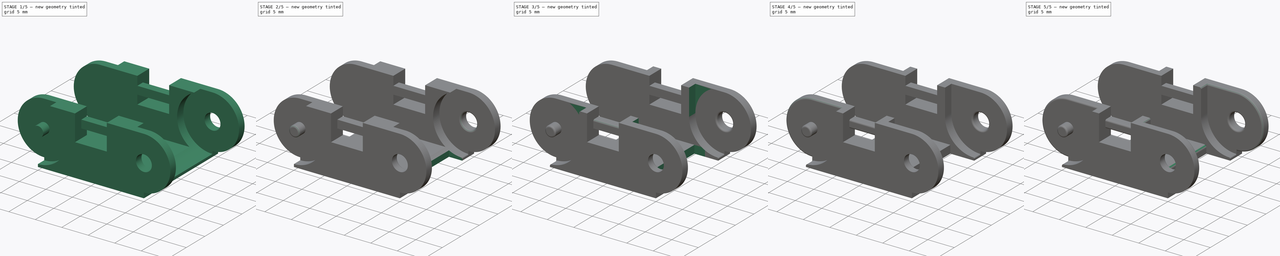
[diagram: build sequence overview — one tinted view per stage of 5, left to right]
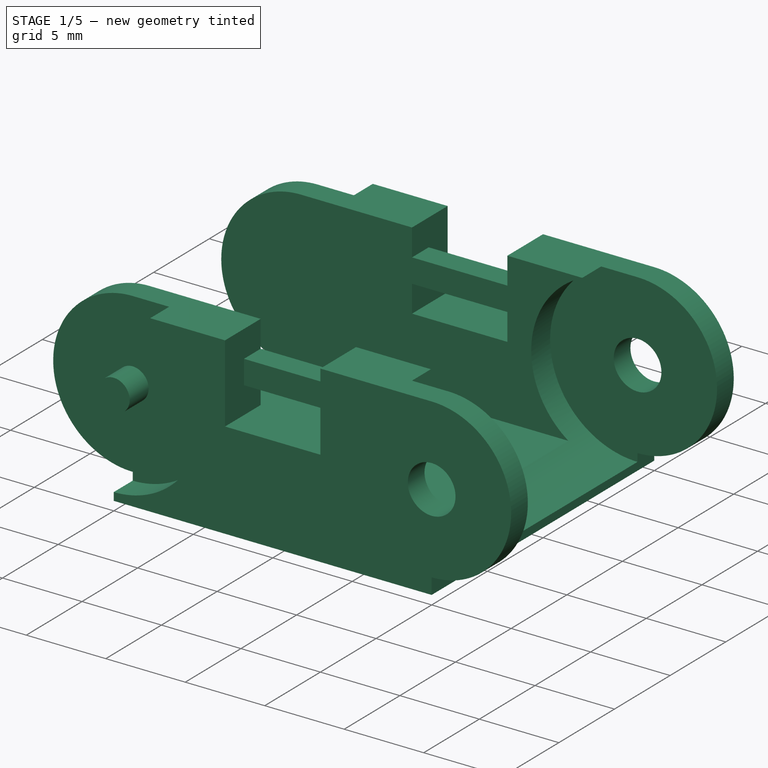
[diagram: stage 1 of 5 — iso view after this stage's code; geometry added in this stage tinted green]
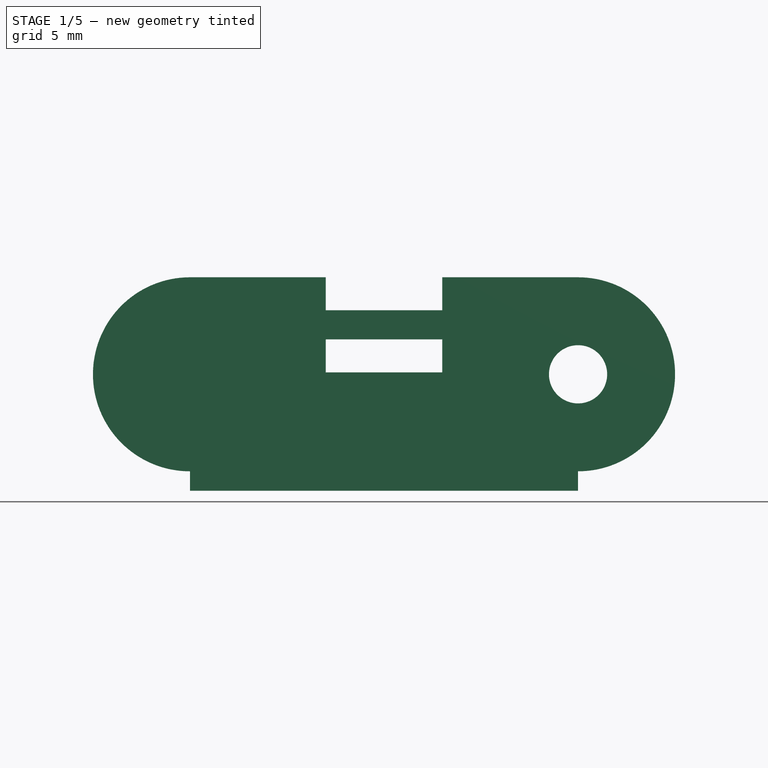
[diagram: stage 1 of 5 — front view after this stage's code; geometry added in this stage tinted green]
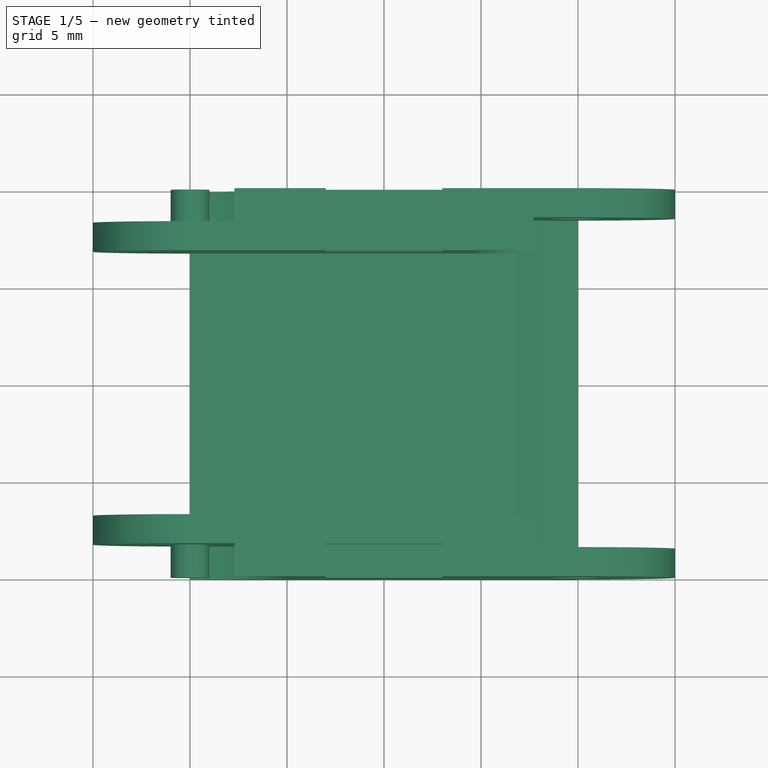
[diagram: stage 1 of 5 — top view after this stage's code; geometry added in this stage tinted green]
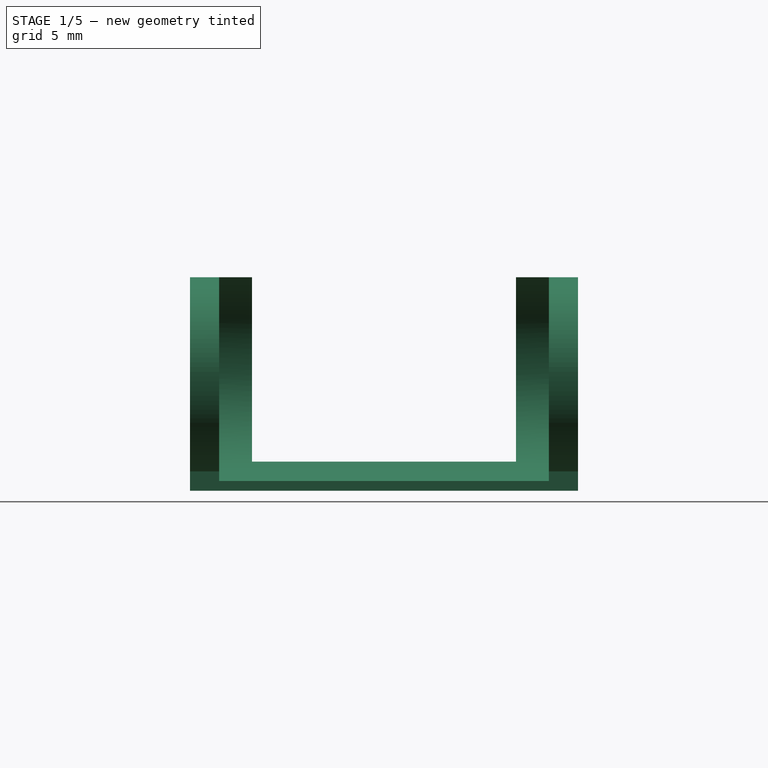
[diagram: stage 1 of 5 — right view after this stage's code; geometry added in this stage tinted green]
FCSTD DOCUMENT  (FreeCAD 0.17R13541 (Git))
Label: CableCareer
License: All rights reserved
LicenseURL: http://en.wikipedia.org/wiki/All_rights_reserved
objects: PartDesign::Fillet×21, Sketcher::SketchObject×12, PartDesign::Pocket×11, PartDesign::Pad×1, PartDesign::Body×1
note: 58 computed .brp shape members not serialized (recipe doc carries the construction recipe); baked Part::Feature solids carry a one-line shape summary decoded from their .brp

FEATURE [Sketcher::SketchObject] Sketch
  AttachmentOffset = pos=(0,0,-10) rot=(0,0,1;0rad)
  MapMode = 5
  Placement = pos=(0,10,1e-12) rot=(1,0,0;1.5708rad)
  Support = -> [XZ_Plane]
  sketch-geometry (6):
    g0: ArcOfCircle CenterX=-10 CenterY=0 CenterZ=0 NormalX=0 NormalY=0 NormalZ=1 AngleXU=0 Radius=5 StartAngle=1.5708 EndAngle=4.71239
    g1: ArcOfCircle CenterX=10 CenterY=0 CenterZ=0 NormalX=0 NormalY=0 NormalZ=1 AngleXU=0 Radius=5 StartAngle=4.71239 EndAngle=7.85398
    g2: LineSegment StartX=-10 StartY=5 StartZ=0 EndX=10 EndY=5 EndZ=0
    g3: LineSegment StartX=-10 StartY=-5 StartZ=0 EndX=-10 EndY=-6 EndZ=0
    g4: LineSegment StartX=-10 StartY=-6 StartZ=0 EndX=10 EndY=-6 EndZ=0
    g5: LineSegment StartX=10 StartY=-6 StartZ=0 EndX=10 EndY=-5 EndZ=0
  constraints (18):
    c: Tangent(g0,g2) = 1.5708
    c: Tangent(g2,g1) = 1.5708
    c: Equal(g0,g1)
    c: PointOnObject(g0,g-1)
    c: Radius(g0) = 5
    c: DistanceX(g0,g1) = 20
    c: DistanceX(g0,g-1) = 10
    c: PointOnObject(g1,g-1)
    c: DistanceX(g0,g0) = 0
    c: Coincident(g3,g4)
    c: Coincident(g4,g5)
    c: Coincident(g5,g1)
    c: Parallel(g4,g-1)
    c: Parallel(g3,g-2)
    c: Parallel(g-2,g5)
    c: DistanceY(g3,g3) = 1
    c: Coincident(g3,g0)
    c: DistanceX(g1,g1) = 0
FEATURE [PartDesign::Pad] Pad
  Length = 20
  Length2 = 100
  Placement = pos=(0,0,0) rot=(1,0,0;1.5708rad)
  Profile = -> Sketch
  Type = 0
FEATURE [Sketcher::SketchObject] Sketch001
  ExternalGeometry = -> [Pad]
  MapMode = 5
  Placement = pos=(0,-10,0) rot=(1,0,0;1.5708rad)
  Support = -> [Pad]
  sketch-geometry (9):
    g0: LineSegment StartX=-3 StartY=5 StartZ=0 EndX=3 EndY=5 EndZ=0
    g1: LineSegment StartX=3 StartY=5 StartZ=0 EndX=3 EndY=3.3 EndZ=0
    g2: LineSegment StartX=3 StartY=3.3 StartZ=0 EndX=-3 EndY=3.3 EndZ=0
    g3: LineSegment StartX=-3 StartY=3.3 StartZ=0 EndX=-3 EndY=5 EndZ=0
    g4: LineSegment StartX=-3 StartY=1.8 StartZ=0 EndX=3 EndY=1.8 EndZ=0
    g5: LineSegment StartX=3 StartY=1.8 StartZ=0 EndX=3 EndY=0.1 EndZ=0
    g6: LineSegment StartX=3 StartY=0.1 StartZ=0 EndX=-3 EndY=0.1 EndZ=0
    g7: LineSegment StartX=-3 StartY=0.1 StartZ=0 EndX=-3 EndY=1.8 EndZ=0
    g8: Circle CenterX=10 CenterY=0 CenterZ=0 NormalX=0 NormalY=0 NormalZ=1 AngleXU=0 Radius=1.5
  constraints (26):
    c: Coincident(g0,g1)
    c: Coincident(g1,g2)
    c: Coincident(g2,g3)
    c: Coincident(g3,g0)
    c: Horizontal(g0)
    c: Horizontal(g2)
    c: Vertical(g1)
    c: Vertical(g3)
    c: PointOnObject(g0,g-4)
    c: DistanceY(g3,g3) = 1.7
    c: DistanceX(g-4,g0) = 7
    c: DistanceX(g0,g-4) = 7
    c: Coincident(g4,g5)
    c: Coincident(g5,g6)
    c: Coincident(g6,g7)
    c: Coincident(g7,g4)
    c: Horizontal(g4)
    c: Horizontal(g6)
    c: Vertical(g5)
    c: Vertical(g7)
    c: DistanceX(g1,g4) = 0
    c: DistanceY(g4,g2) = 1.5
    c: DistanceY(g7,g7) = 1.7
    c: DistanceX(g4,g2) = 0
    c: Radius(g8) = 1.5
    c: Coincident(g8,g-5)
FEATURE [PartDesign::Pocket] Pocket
  BaseFeature = -> Pad
  Length = 20
  Length2 = 100
  Placement = pos=(0,0,0) rot=(1,0,0;1.5708rad)
  Profile = -> Sketch001
  Type = 0
FEATURE [Sketcher::SketchObject] Sketch002
  ExternalGeometry = -> [Pocket]
  MapMode = 5
  Placement = pos=(0,-10,0) rot=(1,0,0;1.5708rad)
  Support = -> [Pocket]
  sketch-geometry (6):
    g0: Circle CenterX=-10 CenterY=0 CenterZ=0 NormalX=0 NormalY=0 NormalZ=1 AngleXU=0 Radius=5.5
    g1: Circle CenterX=-10 CenterY=0 CenterZ=0 NormalX=0 NormalY=0 NormalZ=1 AngleXU=0 Radius=1
    g2: LineSegment StartX=-3 StartY=3.3 StartZ=0 EndX=3 EndY=3.3 EndZ=0
    g3: LineSegment StartX=3 StartY=3.3 StartZ=0 EndX=3 EndY=1.8 EndZ=0
    g4: LineSegment StartX=3 StartY=1.8 StartZ=0 EndX=-3 EndY=1.8 EndZ=0
    g5: LineSegment StartX=-3 StartY=1.8 StartZ=0 EndX=-3 EndY=3.3 EndZ=0
  constraints (14):
    c: Coincident(g0,g-3)
    c: Radius(g0) = 5.5
    c: Coincident(g1,g0)
    c: Radius(g1) = 1
    c: Coincident(g2,g3)
    c: Coincident(g3,g4)
    c: Coincident(g4,g5)
    c: Coincident(g5,g2)
    c: Horizontal(g2)
    c: Horizontal(g4)
    c: Vertical(g3)
    c: Vertical(g5)
    c: Coincident(g-5,g3)
    c: Coincident(g2,g-4)
FEATURE [PartDesign::Pocket] Pocket001
  BaseFeature = -> Pocket
  Length = 1.7
  Length2 = 100
  Placement = pos=(0,0,0) rot=(1,0,0;1.5708rad)
  Profile = -> Sketch002
  Type = 0
FEATURE [Sketcher::SketchObject] Sketch003
  ExternalGeometry = -> [Pocket001]
  MapMode = 5
  Placement = pos=(0,10,0) rot=(-1,0,0;1.5708rad)
  Support = -> [Pocket001]
  sketch-geometry (6):
    g0: Circle CenterX=-10 CenterY=0 CenterZ=0 NormalX=0 NormalY=0 NormalZ=1 AngleXU=0 Radius=5.5
    g1: Circle CenterX=-10 CenterY=0 CenterZ=0 NormalX=0 NormalY=0 NormalZ=1 AngleXU=0 Radius=1
    g2: LineSegment StartX=-3 StartY=-1.8 StartZ=0 EndX=3 EndY=-1.8 EndZ=0
    g3: LineSegment StartX=3 StartY=-1.8 StartZ=0 EndX=3 EndY=-3.3 EndZ=0
    g4: LineSegment StartX=3 StartY=-3.3 StartZ=0 EndX=-3 EndY=-3.3 EndZ=0
    g5: LineSegment StartX=-3 StartY=-3.3 StartZ=0 EndX=-3 EndY=-1.8 EndZ=0
  constraints (14):
    c: Coincident(g-3,g0)
    c: Radius(g0) = 5.5
    c: Coincident(g1,g0)
    c: Radius(g1) = 1
    c: Coincident(g2,g3)
    c: Coincident(g3,g4)
    c: Coincident(g4,g5)
    c: Coincident(g5,g2)
    c: Horizontal(g2)
    c: Horizontal(g4)
    c: Vertical(g3)
    c: Vertical(g5)
    c: Coincident(g-5,g3)
    c: Coincident(g-4,g2)
FEATURE [PartDesign::Pocket] Pocket002
  BaseFeature = -> Pocket001
  Length = 1.7
  Length2 = 100
  Placement = pos=(0,0,0) rot=(1,0,0;1.5708rad)
  Profile = -> Sketch003
  Type = 0
FEATURE [Sketcher::SketchObject] Sketch004
  MapMode = 5
  Placement = pos=(0,0,5) rot=(0,0,1;3.14159rad)
  sketch-geometry (4):
    g0: LineSegment StartX=-15 StartY=6.8 StartZ=0 EndX=15 EndY=6.8 EndZ=0
    g1: LineSegment StartX=15 StartY=6.8 StartZ=0 EndX=15 EndY=-6.8 EndZ=0
    g2: LineSegment StartX=15 StartY=-6.8 StartZ=0 EndX=-15 EndY=-6.8 EndZ=0
    g3: LineSegment StartX=-15 StartY=-6.8 StartZ=0 EndX=-15 EndY=6.8 EndZ=0
  constraints (8):
    c: Coincident(g0,g1)
    c: Coincident(g1,g2)
    c: Coincident(g2,g3)
    c: Coincident(g3,g0)
    c: Horizontal(g0)
    c: Horizontal(g2)
    c: Vertical(g1)
    c: Vertical(g3)
FEATURE [PartDesign::Pocket] Pocket003
  BaseFeature = -> Pocket002
  Length = 9.5
  Length2 = 100
  Placement = pos=(0,0,0) rot=(1,0,0;1.5708rad)
  Profile = -> Sketch004
  Type = 0
FEATURE [Sketcher::SketchObject] Sketch005
  ExternalGeometry = -> [Pocket003]
  MapMode = 5
  Placement = pos=(0,0,-4.5) rot=(0,0,1;3.14159rad)
  Support = -> [Pocket003]
  sketch-geometry (8):
    g0: LineSegment StartX=-15 StartY=6.8 StartZ=0 EndX=-10 EndY=6.8 EndZ=0
    g1: LineSegment StartX=-10 StartY=6.8 StartZ=0 EndX=-10 EndY=-6.8 EndZ=0
    g2: LineSegment StartX=-10 StartY=-6.8 StartZ=0 EndX=-15 EndY=-6.8 EndZ=0
    g3: LineSegment StartX=-15 StartY=-6.8 StartZ=0 EndX=-15 EndY=6.8 EndZ=0
    g4: LineSegment StartX=10 StartY=6.8 StartZ=0 EndX=15 EndY=6.8 EndZ=0
    g5: LineSegment StartX=15 StartY=6.8 StartZ=0 EndX=15 EndY=-6.8 EndZ=0
    g6: LineSegment StartX=15 StartY=-6.8 StartZ=0 EndX=10 EndY=-6.8 EndZ=0
    g7: LineSegment StartX=10 StartY=-6.8 StartZ=0 EndX=10 EndY=6.8 EndZ=0
  constraints (22):
    c: Coincident(g0,g1)
    c: Coincident(g1,g2)
    c: Coincident(g2,g3)
    c: Coincident(g3,g0)
    c: Horizontal(g0)
    c: Horizontal(g2)
    c: Vertical(g1)
    c: Vertical(g3)
    c: Coincident(g-4,g1)
    c: Coincident(g0,g-3)
    c: DistanceX(g0,g0) = 5
    c: Coincident(g4,g5)
    c: Coincident(g5,g6)
    c: Coincident(g6,g7)
    c: Coincident(g7,g4)
    c: Horizontal(g4)
    c: Horizontal(g6)
    c: Vertical(g5)
    c: Vertical(g7)
    c: Coincident(g6,g-5)
    c: Coincident(g4,g-6)
    c: DistanceX(g4,g4) = 5
FEATURE [PartDesign::Pocket] Pocket004
  BaseFeature = -> Pocket003
  Length = 1.5
  Length2 = 100
  Placement = pos=(0,0,0) rot=(1,0,0;1.5708rad)
  Profile = -> Sketch005
  Type = 0
FEATURE [Sketcher::SketchObject] Sketch006
  AttachmentOffset = pos=(0,0,-1.5) rot=(0,0,1;0rad)
  ExternalGeometry = -> [Pocket004]
  MapMode = 5
  Placement = pos=(0,-8.5,0) rot=(1,0,0;1.5708rad)
  Support = -> [Pocket004]
  sketch-geometry (1):
    g0: Circle CenterX=10 CenterY=0 CenterZ=0 NormalX=0 NormalY=0 NormalZ=1 AngleXU=0 Radius=5.5
  constraints (2):
    c: Coincident(g0,g-3)
    c: Radius(g0) = 5.5
FEATURE [PartDesign::Pocket] Pocket005
  BaseFeature = -> Pocket004
  Length = 17
  Length2 = 100
  Placement = pos=(0,0,0) rot=(1,0,0;1.5708rad)
  Profile = -> Sketch006
  Type = 0
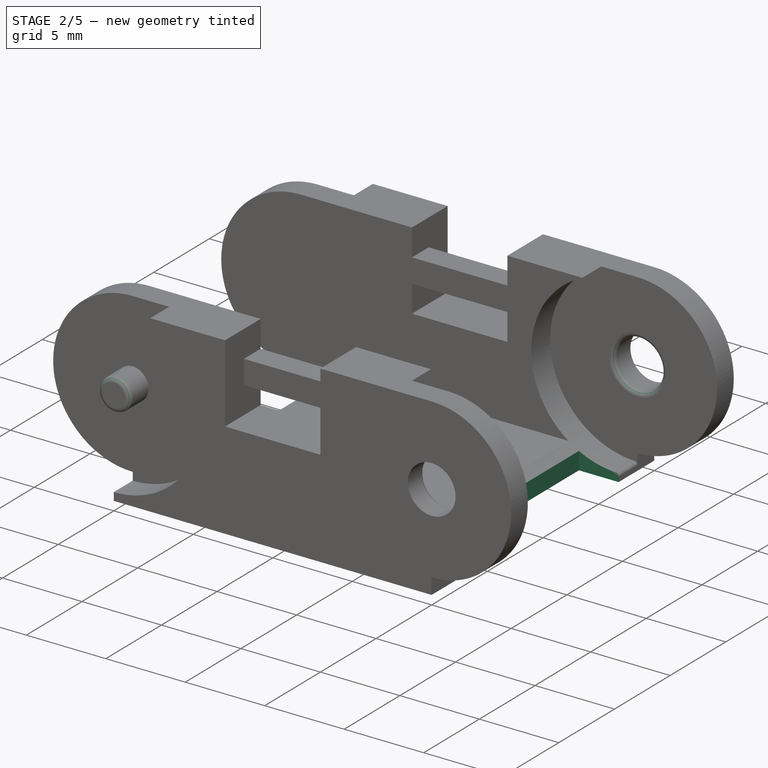
[diagram: stage 2 of 5 — iso view after this stage's code; geometry added in this stage tinted green]
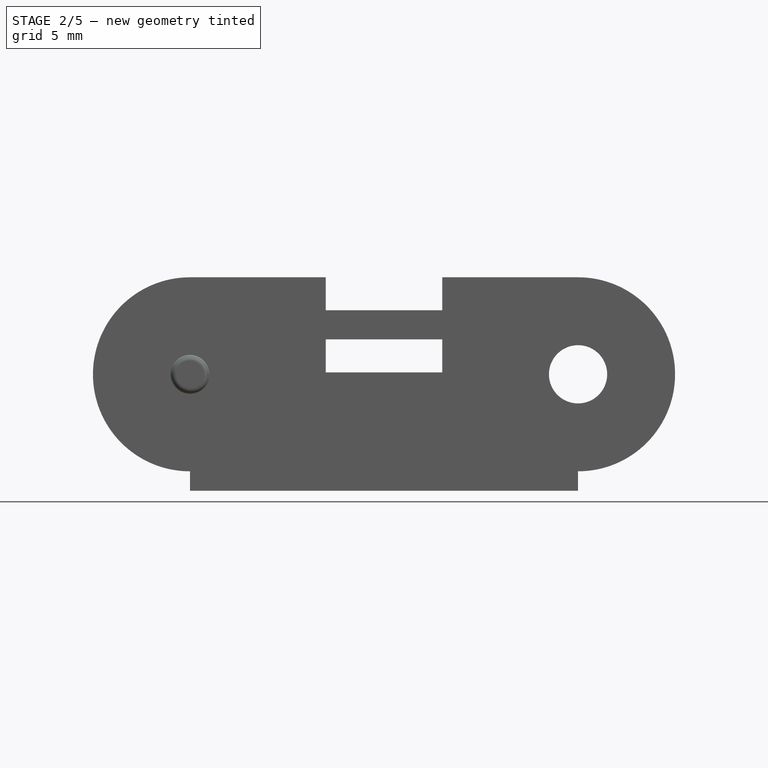
[diagram: stage 2 of 5 — front view after this stage's code; geometry added in this stage tinted green]
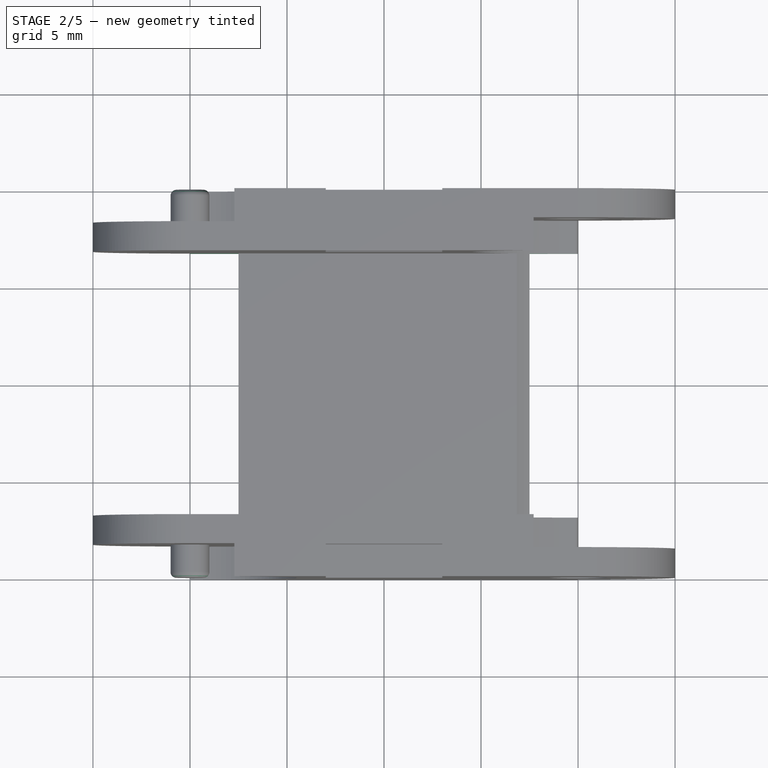
[diagram: stage 2 of 5 — top view after this stage's code; geometry added in this stage tinted green]
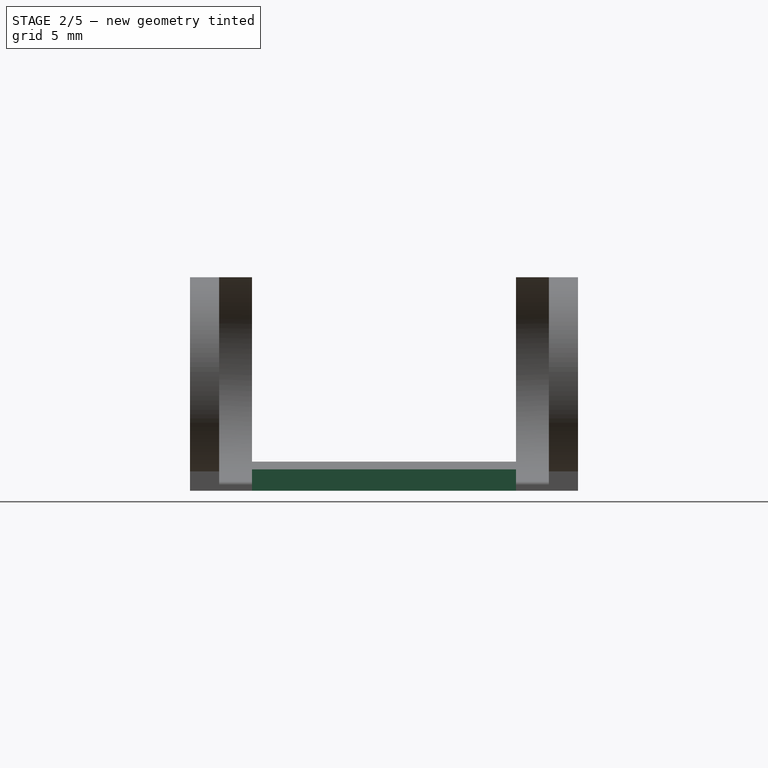
[diagram: stage 2 of 5 — right view after this stage's code; geometry added in this stage tinted green]
FEATURE [PartDesign::Fillet] Fillet
  Base = -> Pocket005 [Edge155]
  BaseFeature = -> Pocket005
  Placement = pos=(0,0,0) rot=(1,0,0;1.5708rad)
  Radius = 0.3
FEATURE [PartDesign::Fillet] Fillet001
  Base = -> Fillet [Edge155]
  BaseFeature = -> Fillet
  Placement = pos=(0,0,0) rot=(1,0,0;1.5708rad)
  Radius = 0.3
FEATURE [PartDesign::Fillet] Fillet002
  Base = -> Fillet001 [Edge80]
  BaseFeature = -> Fillet001
  Placement = pos=(0,0,0) rot=(1,0,0;1.5708rad)
  Radius = 0.3
FEATURE [PartDesign::Fillet] Fillet003
  Base = -> Fillet002 [Edge111]
  BaseFeature = -> Fillet002
  Placement = pos=(0,0,0) rot=(1,0,0;1.5708rad)
  Radius = 0.3
FEATURE [PartDesign::Fillet] Fillet004
  Base = -> Fillet003 [Edge15]
  BaseFeature = -> Fillet003
  Placement = pos=(0,0,0) rot=(1,0,0;1.5708rad)
  Radius = 0.2
FEATURE [Sketcher::SketchObject] Sketch007
  ExternalGeometry = -> [Fillet003]
  MapMode = 5
  Placement = pos=(0,0,-4.5) rot=(0,0,1;3.14159rad)
  Support = -> [Fillet003]
  sketch-geometry (8):
    g0: LineSegment StartX=10 StartY=-6.8 StartZ=0 EndX=7.5 EndY=-6.8 EndZ=0
    g1: LineSegment StartX=7.5 StartY=-6.8 StartZ=0 EndX=7.5 EndY=6.8 EndZ=0
    g2: LineSegment StartX=7.5 StartY=6.8 StartZ=0 EndX=10 EndY=6.8 EndZ=0
    g3: LineSegment StartX=10 StartY=6.8 StartZ=0 EndX=10 EndY=-6.8 EndZ=0
    g4: LineSegment StartX=-7.5 StartY=-6.8 StartZ=0 EndX=-10 EndY=-6.8 EndZ=0
    g5: LineSegment StartX=-10 StartY=-6.8 StartZ=0 EndX=-10 EndY=6.8 EndZ=0
    g6: LineSegment StartX=-10 StartY=6.8 StartZ=0 EndX=-7.5 EndY=6.8 EndZ=0
    g7: LineSegment StartX=-7.5 StartY=6.8 StartZ=0 EndX=-7.5 EndY=-6.8 EndZ=0
  constraints (22):
    c: Coincident(g0,g1)
    c: Coincident(g1,g2)
    c: Coincident(g2,g3)
    c: Coincident(g3,g0)
    c: Horizontal(g0)
    c: Horizontal(g2)
    c: Vertical(g1)
    c: Vertical(g3)
    c: DistanceX(g0,g0) = 2.5
    c: Coincident(g4,g5)
    c: Coincident(g5,g6)
    c: Coincident(g6,g7)
    c: Coincident(g7,g4)
    c: Horizontal(g4)
    c: Horizontal(g6)
    c: Vertical(g5)
    c: Vertical(g7)
    c: Coincident(g-3,g5)
    c: Coincident(g4,g-3)
    c: DistanceX(g4,g4) = 2.5
    c: Coincident(g0,g-4)
    c: Coincident(g-4,g2)
FEATURE [PartDesign::Pocket] Pocket006
  BaseFeature = -> Fillet004
  Length = 1.5
  Length2 = 100
  Placement = pos=(0,0,0) rot=(1,0,0;1.5708rad)
  Profile = -> Sketch007
  Type = 0
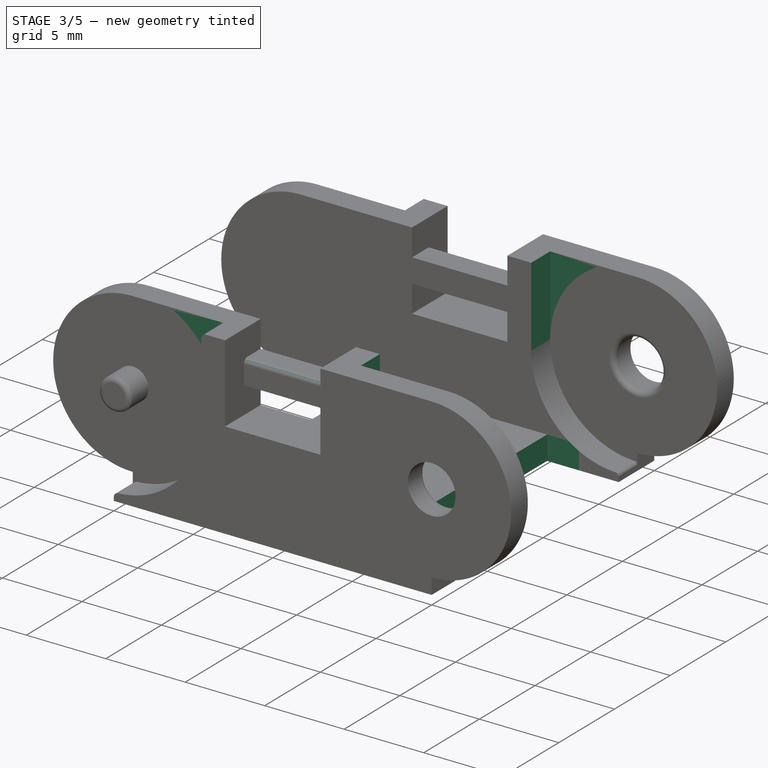
[diagram: stage 3 of 5 — iso view after this stage's code; geometry added in this stage tinted green]
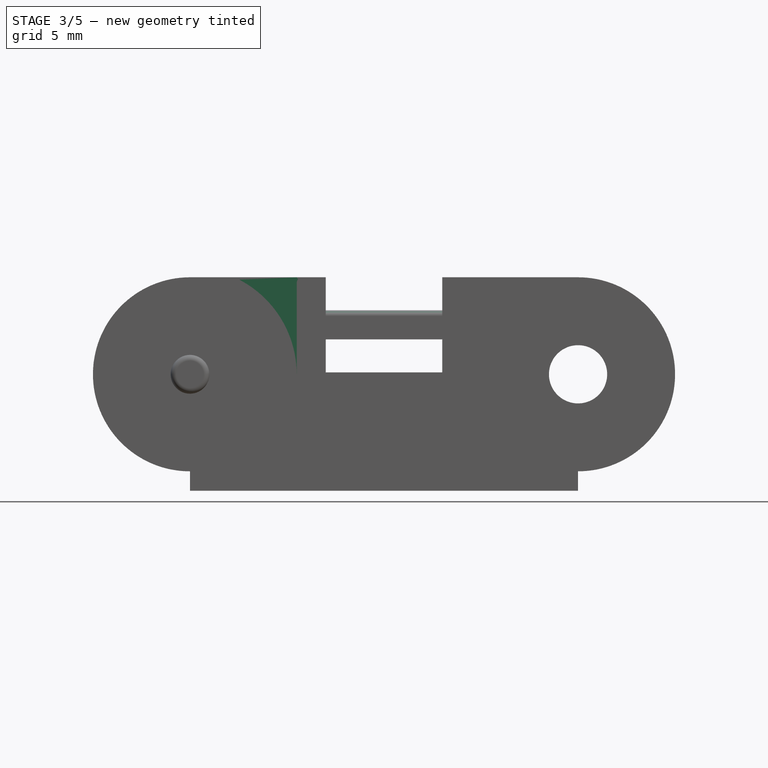
[diagram: stage 3 of 5 — front view after this stage's code; geometry added in this stage tinted green]
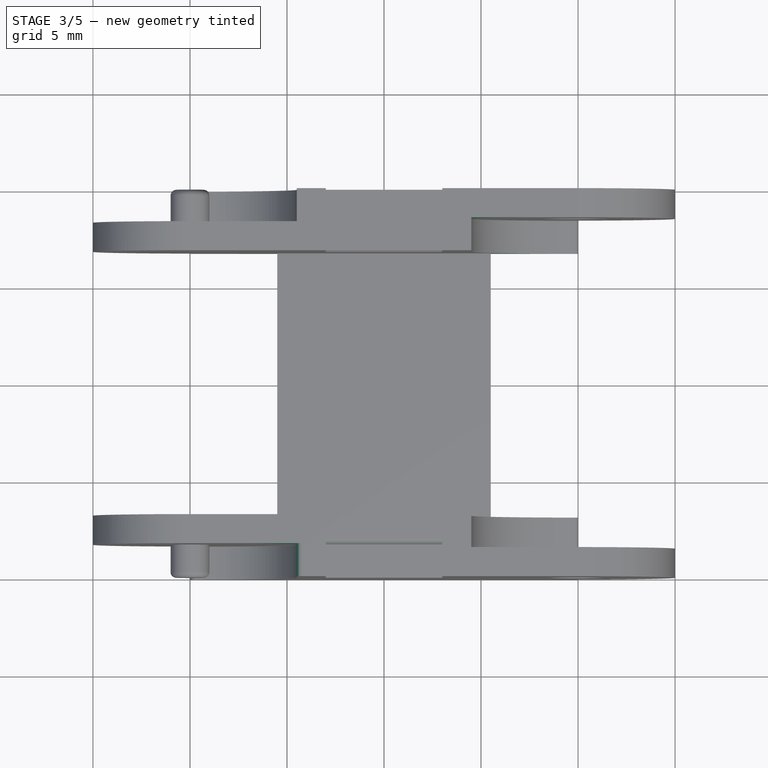
[diagram: stage 3 of 5 — top view after this stage's code; geometry added in this stage tinted green]
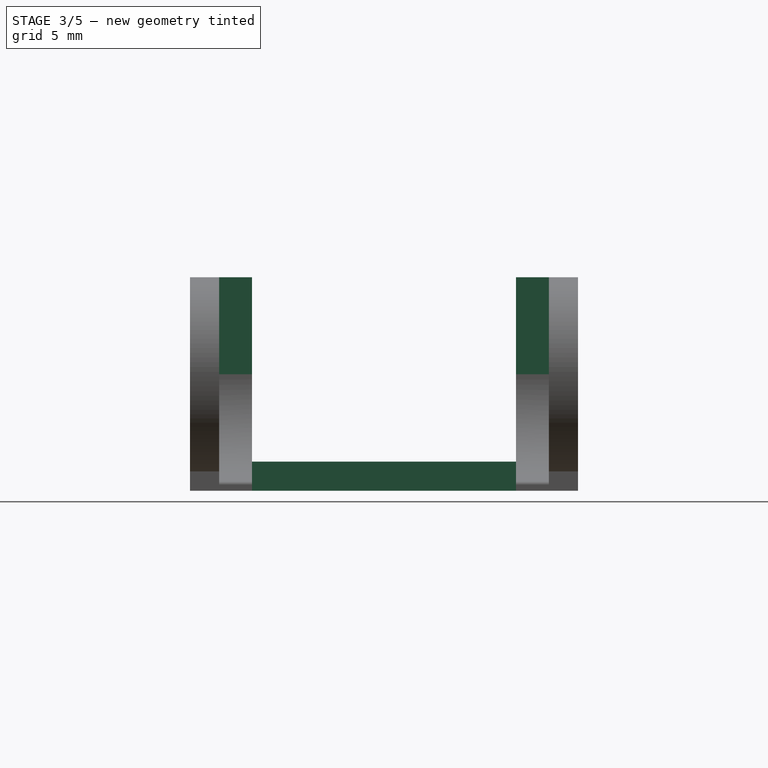
[diagram: stage 3 of 5 — right view after this stage's code; geometry added in this stage tinted green]
FEATURE [Sketcher::SketchObject] Sketch008
  ExternalGeometry = -> [Pocket006]
  MapMode = 5
  Placement = pos=(0,-10,0) rot=(1,0,0;1.5708rad)
  Support = -> [Pocket006]
  sketch-geometry (4):
    g0: LineSegment StartX=-8.5 StartY=5 StartZ=0 EndX=-4.5 EndY=5 EndZ=0
    g1: LineSegment StartX=-4.5 StartY=5 StartZ=0 EndX=-4.5 EndY=0 EndZ=0
    g2: LineSegment StartX=-4.5 StartY=0 StartZ=0 EndX=-8.5 EndY=0 EndZ=0
    g3: LineSegment StartX=-8.5 StartY=0 StartZ=0 EndX=-8.5 EndY=5 EndZ=0
  constraints (12):
    c: Coincident(g0,g1)
    c: Coincident(g1,g2)
    c: Coincident(g2,g3)
    c: Coincident(g3,g0)
    c: Horizontal(g0)
    c: Horizontal(g2)
    c: Vertical(g1)
    c: Vertical(g3)
    c: PointOnObject(g2,g-1)
    c: DistanceY(g3,g3) = 5
    c: DistanceX(g-5,g1) = 5.5
    c: DistanceX(g2,g2) = 4
FEATURE [PartDesign::Pocket] Pocket007
  BaseFeature = -> Pocket006
  Length = 1.7
  Length2 = 100
  Placement = pos=(0,0,0) rot=(1,0,0;1.5708rad)
  Profile = -> Sketch008
  Type = 0
FEATURE [Sketcher::SketchObject] Sketch009
  ExternalGeometry = -> [Pocket007]
  MapMode = 5
  Placement = pos=(0,10,0) rot=(-1,0,0;1.5708rad)
  Support = -> [Pocket007]
  sketch-geometry (4):
    g0: LineSegment StartX=-8.5 StartY=0 StartZ=0 EndX=-4.5 EndY=0 EndZ=0
    g1: LineSegment StartX=-4.5 StartY=0 StartZ=0 EndX=-4.5 EndY=-5 EndZ=0
    g2: LineSegment StartX=-4.5 StartY=-5 StartZ=0 EndX=-8.5 EndY=-5 EndZ=0
    g3: LineSegment StartX=-8.5 StartY=-5 StartZ=0 EndX=-8.5 EndY=0 EndZ=0
  constraints (12):
    c: Coincident(g0,g1)
    c: Coincident(g1,g2)
    c: Coincident(g2,g3)
    c: Coincident(g3,g0)
    c: Horizontal(g0)
    c: Horizontal(g2)
    c: Vertical(g1)
    c: Vertical(g3)
    c: PointOnObject(g0,g-1)
    c: DistanceX(g-3,g0) = 5.5
    c: PointOnObject(g-3,g2)
    c: DistanceX(g2,g1) = 4
FEATURE [PartDesign::Pocket] Pocket008
  BaseFeature = -> Pocket007
  Length = 1.7
  Length2 = 100
  Placement = pos=(0,0,0) rot=(1,0,0;1.5708rad)
  Profile = -> Sketch009
  Type = 0
FEATURE [Sketcher::SketchObject] Sketch010
  AttachmentOffset = pos=(0,0,-1.5) rot=(0,0,1;0rad)
  ExternalGeometry = -> [Pocket008]
  MapMode = 5
  Placement = pos=(0,8.5,0) rot=(-1,0,0;1.5708rad)
  Support = -> [Pocket008]
  sketch-geometry (4):
    g0: LineSegment StartX=10 StartY=0 StartZ=0 EndX=4.5 EndY=0 EndZ=0
    g1: LineSegment StartX=4.5 StartY=0 StartZ=0 EndX=4.5 EndY=-5 EndZ=0
    g2: LineSegment StartX=4.5 StartY=-5 StartZ=0 EndX=10 EndY=-5 EndZ=0
    g3: LineSegment StartX=10 StartY=-5 StartZ=0 EndX=10 EndY=0 EndZ=0
  constraints (12):
    c: Coincident(g0,g1)
    c: Coincident(g1,g2)
    c: Coincident(g2,g3)
    c: Coincident(g3,g0)
    c: Horizontal(g0)
    c: Horizontal(g2)
    c: Vertical(g1)
    c: Vertical(g3)
    c: PointOnObject(g1,g-4)
    c: DistanceX(g0,g-3) = 5.5
    c: PointOnObject(g0,g-1)
    c: DistanceX(g0,g0) = 5.5
FEATURE [PartDesign::Pocket] Pocket009
  BaseFeature = -> Pocket008
  Length = 17
  Length2 = 100
  Placement = pos=(0,0,0) rot=(1,0,0;1.5708rad)
  Profile = -> Sketch010
  Type = 0
FEATURE [Sketcher::SketchObject] Sketch011
  ExternalGeometry = -> [Pocket009]
  MapMode = 5
  Placement = pos=(0,0,-4.5) rot=(0,0,1;3.14159rad)
  Support = -> [Pocket009]
  sketch-geometry (8):
    g0: LineSegment StartX=-7.5 StartY=6.8 StartZ=0 EndX=-5.5 EndY=6.8 EndZ=0
    g1: LineSegment StartX=-5.5 StartY=6.8 StartZ=0 EndX=-5.5 EndY=-6.8 EndZ=0
    g2: LineSegment StartX=-5.5 StartY=-6.8 StartZ=0 EndX=-7.5 EndY=-6.8 EndZ=0
    g3: LineSegment StartX=-7.5 StartY=-6.8 StartZ=0 EndX=-7.5 EndY=6.8 EndZ=0
    g4: LineSegment StartX=7.5 StartY=-6.8 StartZ=0 EndX=5.5 EndY=-6.8 EndZ=0
    g5: LineSegment StartX=5.5 StartY=-6.8 StartZ=0 EndX=5.5 EndY=6.8 EndZ=0
    g6: LineSegment StartX=5.5 StartY=6.8 StartZ=0 EndX=7.5 EndY=6.8 EndZ=0
    g7: LineSegment StartX=7.5 StartY=6.8 StartZ=0 EndX=7.5 EndY=-6.8 EndZ=0
  constraints (22):
    c: Coincident(g0,g1)
    c: Coincident(g1,g2)
    c: Coincident(g2,g3)
    c: Coincident(g3,g0)
    c: Horizontal(g0)
    c: Horizontal(g2)
    c: Vertical(g1)
    c: Vertical(g3)
    c: Coincident(g2,g-3)
    c: Coincident(g-3,g0)
    c: DistanceX(g0,g0) = 2
    c: Coincident(g4,g5)
    c: Coincident(g5,g6)
    c: Coincident(g6,g7)
    c: Coincident(g7,g4)
    c: Horizontal(g4)
    c: Horizontal(g6)
    c: Vertical(g5)
    c: Vertical(g7)
    c: Coincident(g6,g-4)
    c: Coincident(g4,g-4)
    c: DistanceX(g4,g4) = 2
FEATURE [PartDesign::Pocket] Pocket010
  BaseFeature = -> Pocket009
  Length = 1.5
  Length2 = 100
  Placement = pos=(0,0,0) rot=(1,0,0;1.5708rad)
  Profile = -> Sketch011
  Type = 0
FEATURE [PartDesign::Fillet] Fillet005
  Base = -> Pocket010 [Edge66]
  BaseFeature = -> Pocket010
  Placement = pos=(0,0,0) rot=(1,0,0;1.5708rad)
  Radius = 0.3
FEATURE [PartDesign::Fillet] Fillet006
  Base = -> Fillet005 [Edge36]
  BaseFeature = -> Fillet005
  Placement = pos=(0,0,0) rot=(1,0,0;1.5708rad)
  Radius = 0.3
FEATURE [PartDesign::Fillet] Fillet007
  Base = -> Fillet006 [Edge154]
  BaseFeature = -> Fillet006
  Placement = pos=(0,0,0) rot=(1,0,0;1.5708rad)
  Radius = 0.3
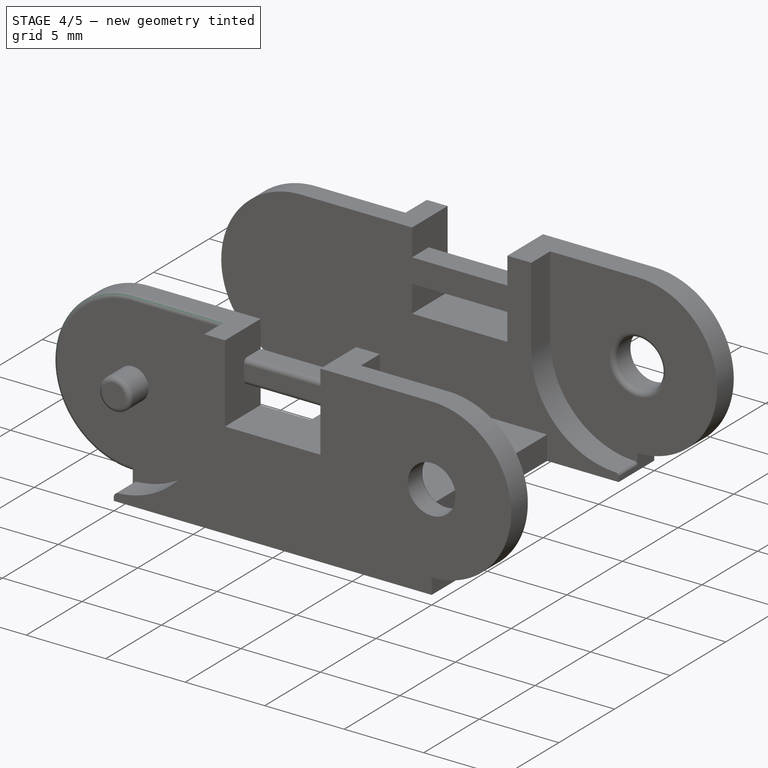
[diagram: stage 4 of 5 — iso view after this stage's code; geometry added in this stage tinted green]
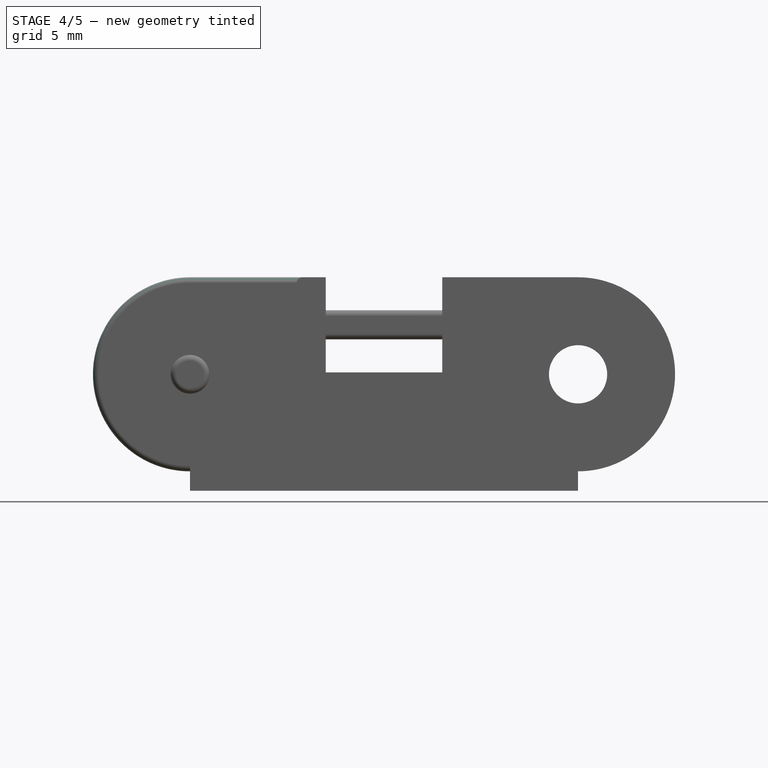
[diagram: stage 4 of 5 — front view after this stage's code; geometry added in this stage tinted green]
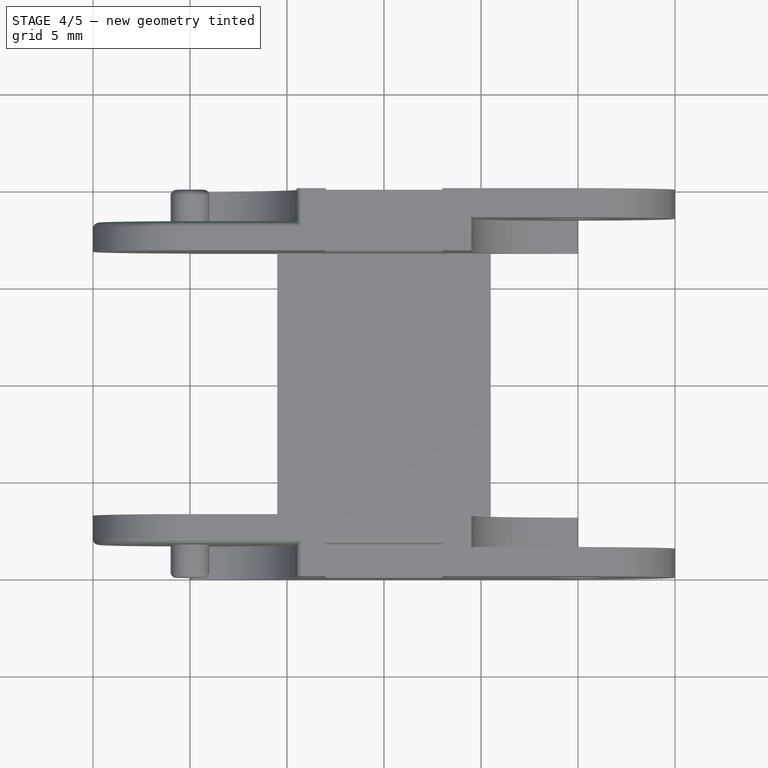
[diagram: stage 4 of 5 — top view after this stage's code; geometry added in this stage tinted green]
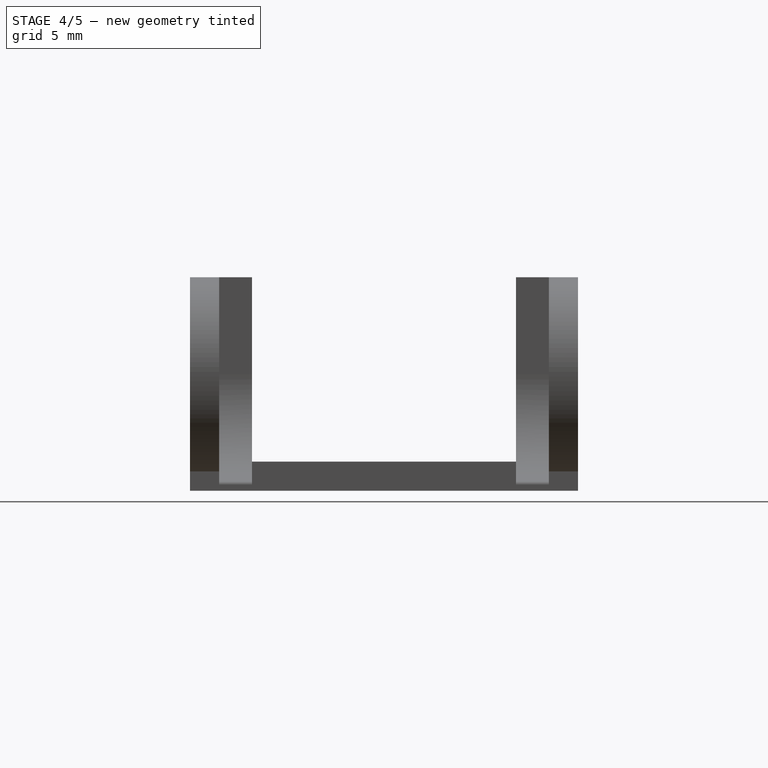
[diagram: stage 4 of 5 — right view after this stage's code; geometry added in this stage tinted green]
FEATURE [PartDesign::Fillet] Fillet008
  Base = -> Fillet007 [Edge57]
  BaseFeature = -> Fillet007
  Placement = pos=(0,0,0) rot=(1,0,0;1.5708rad)
  Radius = 0.3
FEATURE [PartDesign::Fillet] Fillet009
  Base = -> Fillet008 [Edge121]
  BaseFeature = -> Fillet008
  Placement = pos=(0,0,0) rot=(1,0,0;1.5708rad)
  Radius = 0.3
FEATURE [PartDesign::Fillet] Fillet010
  Base = -> Fillet009 [Edge209]
  BaseFeature = -> Fillet009
  Placement = pos=(0,0,0) rot=(1,0,0;1.5708rad)
  Radius = 0.3
FEATURE [PartDesign::Fillet] Fillet011
  Base = -> Fillet010 [Edge35]
  BaseFeature = -> Fillet010
  Placement = pos=(0,0,0) rot=(1,0,0;1.5708rad)
  Radius = 0.3
FEATURE [PartDesign::Fillet] Fillet012
  Base = -> Fillet011 [Edge87]
  BaseFeature = -> Fillet011
  Placement = pos=(0,0,0) rot=(1,0,0;1.5708rad)
  Radius = 0.3
FEATURE [PartDesign::Fillet] Fillet013
  Base = -> Fillet012 [Edge172]
  BaseFeature = -> Fillet012
  Placement = pos=(0,0,0) rot=(1,0,0;1.5708rad)
  Radius = 0.3
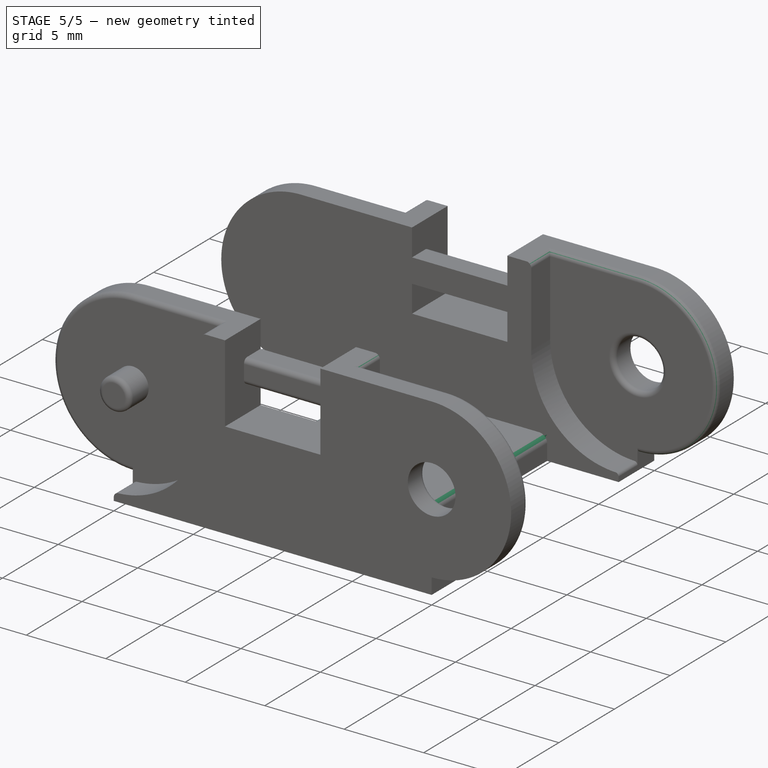
[diagram: stage 5 of 5 — iso view after this stage's code; geometry added in this stage tinted green]
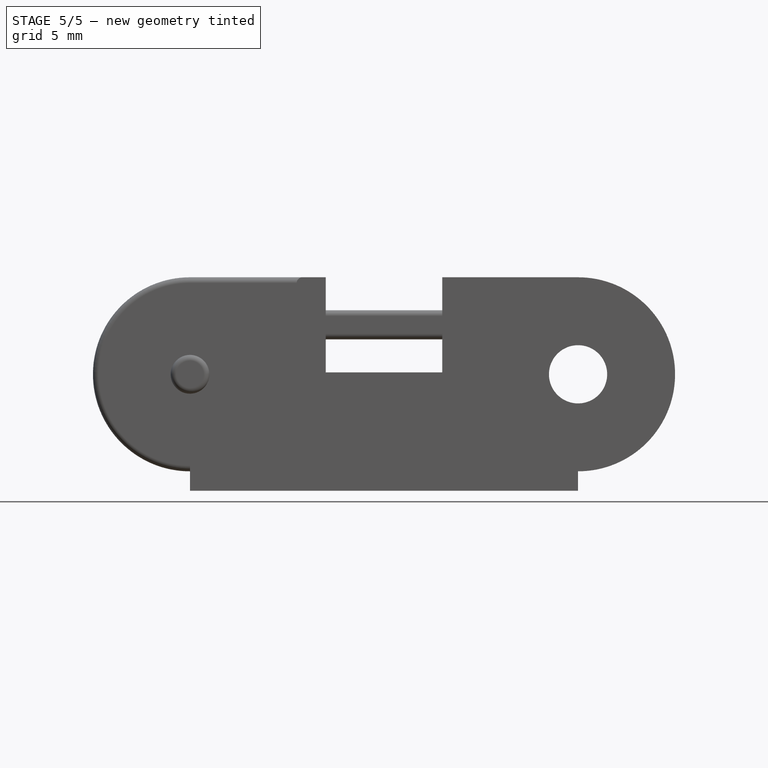
[diagram: stage 5 of 5 — front view after this stage's code; geometry added in this stage tinted green]
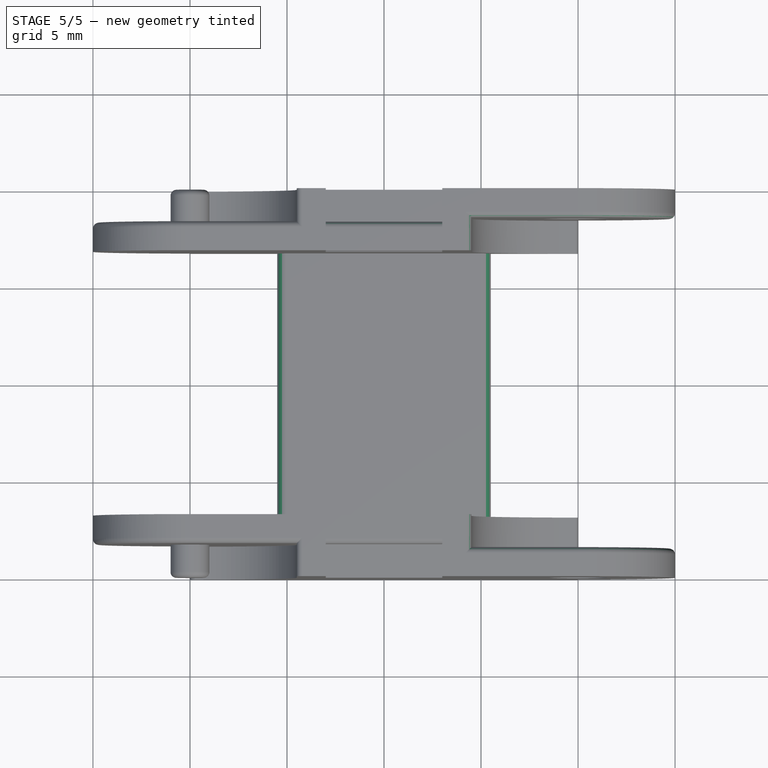
[diagram: stage 5 of 5 — top view after this stage's code; geometry added in this stage tinted green]
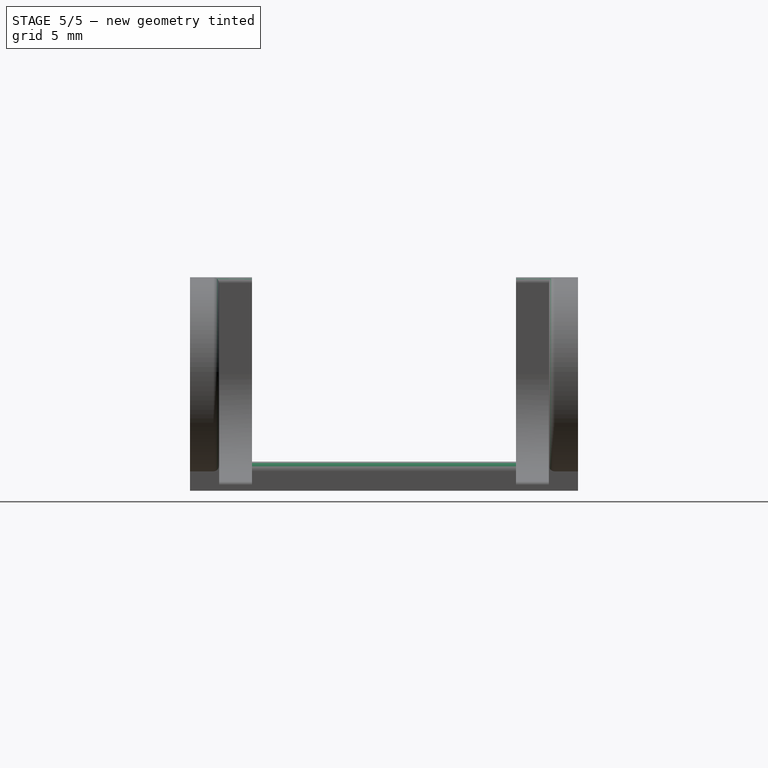
[diagram: stage 5 of 5 — right view after this stage's code; geometry added in this stage tinted green]
FEATURE [PartDesign::Fillet] Fillet014
  Base = -> Fillet013 [Edge8]
  BaseFeature = -> Fillet013
  Placement = pos=(0,0,0) rot=(1,0,0;1.5708rad)
  Radius = 0.3
FEATURE [PartDesign::Fillet] Fillet015
  Base = -> Fillet014 [Edge107]
  BaseFeature = -> Fillet014
  Placement = pos=(0,0,0) rot=(1,0,0;1.5708rad)
  Radius = 0.3
FEATURE [PartDesign::Fillet] Fillet016
  Base = -> Fillet015 [Edge93]
  BaseFeature = -> Fillet015
  Placement = pos=(0,0,0) rot=(1,0,0;1.5708rad)
  Radius = 0.3
FEATURE [PartDesign::Fillet] Fillet017
  Base = -> Fillet016 [Edge253]
  BaseFeature = -> Fillet016
  Placement = pos=(0,0,0) rot=(1,0,0;1.5708rad)
  Radius = 0.3
FEATURE [PartDesign::Fillet] Fillet018
  Base = -> Fillet017 [Edge92]
  BaseFeature = -> Fillet017
  Placement = pos=(0,0,0) rot=(1,0,0;1.5708rad)
  Radius = 0.3
FEATURE [PartDesign::Fillet] Fillet019
  Base = -> Fillet018 [Edge133]
  BaseFeature = -> Fillet018
  Placement = pos=(0,0,0) rot=(1,0,0;1.5708rad)
  Radius = 0.5
FEATURE [PartDesign::Fillet] Fillet020
  Base = -> Fillet019 [Edge22]
  BaseFeature = -> Fillet019
  Placement = pos=(0,0,0) rot=(1,0,0;1.5708rad)
  Radius = 0.5
FEATURE [PartDesign::Body] Body
  Group = -> [Sketch,Pad,Sketch001,Pocket,Sketch002,Pocket001,Sketch003,Pocket002,Sketch004,Pocket003,Sketch005,Pocket004,Sketch006,Pocket005,Fillet,Fillet001,Fillet002,Fillet003,Fillet004,Sketch007,Pocket006,Sketch008,Pocket007,Sketch009,Pocket008,Sketch010,Pocket009,Sketch011,Pocket010,Fillet005,Fillet006,Fillet007,Fillet008,Fillet009,Fillet010,Fillet011,Fillet012,Fillet013,Fillet014,Fillet015,Fillet016,+4 more]
  Origin = -> Origin
  Tip = -> Fillet020
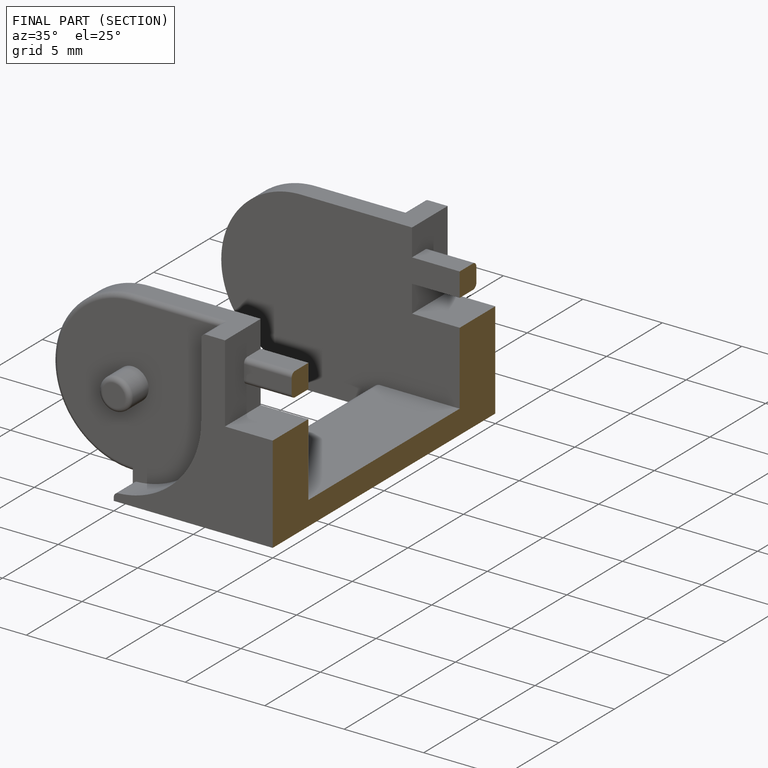
[diagram: finished part — half-section view (interior)]
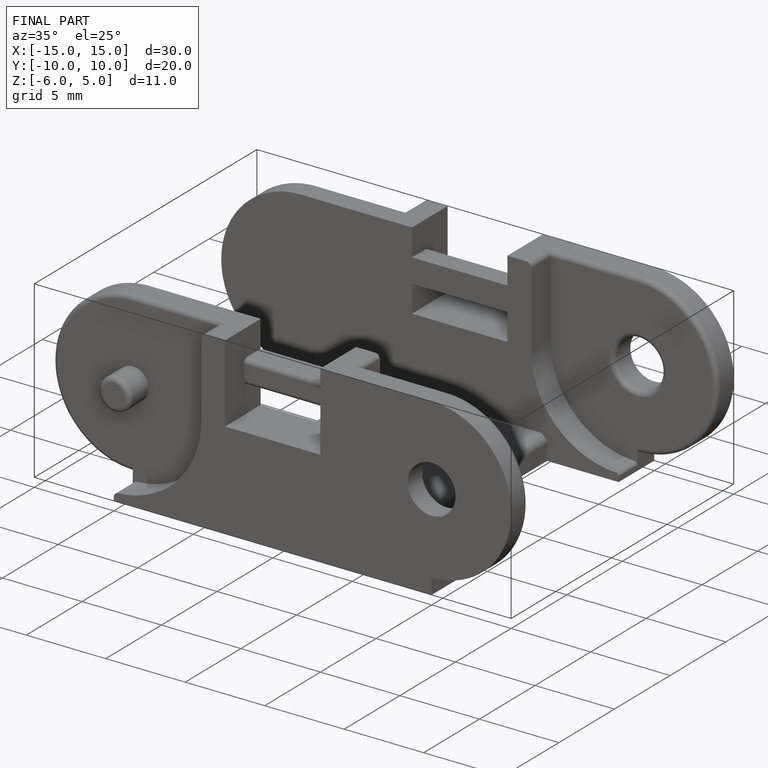
[diagram: finished part — iso view with bounding-box wireframe]
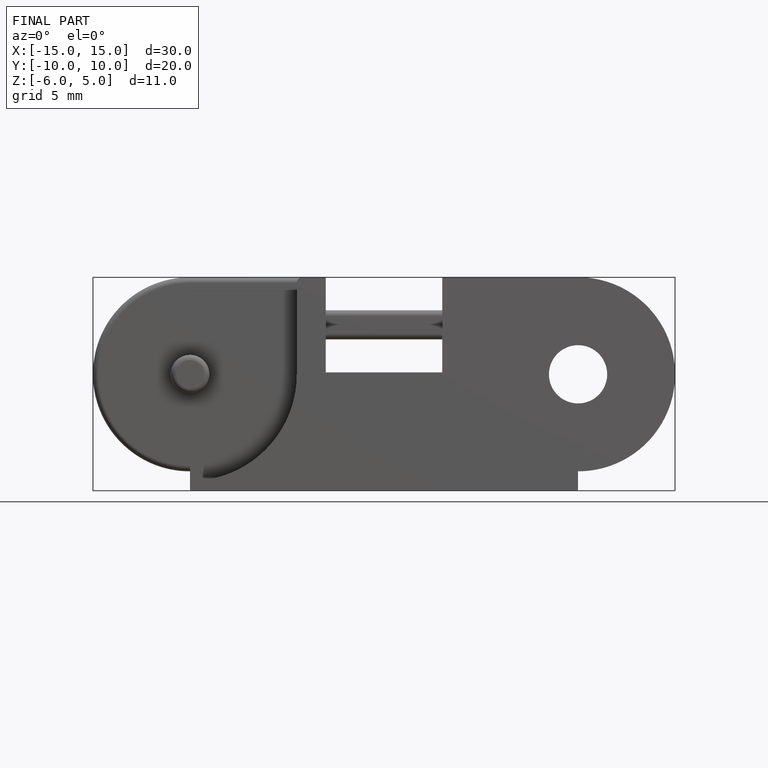
[diagram: finished part — front view with bounding-box wireframe]
